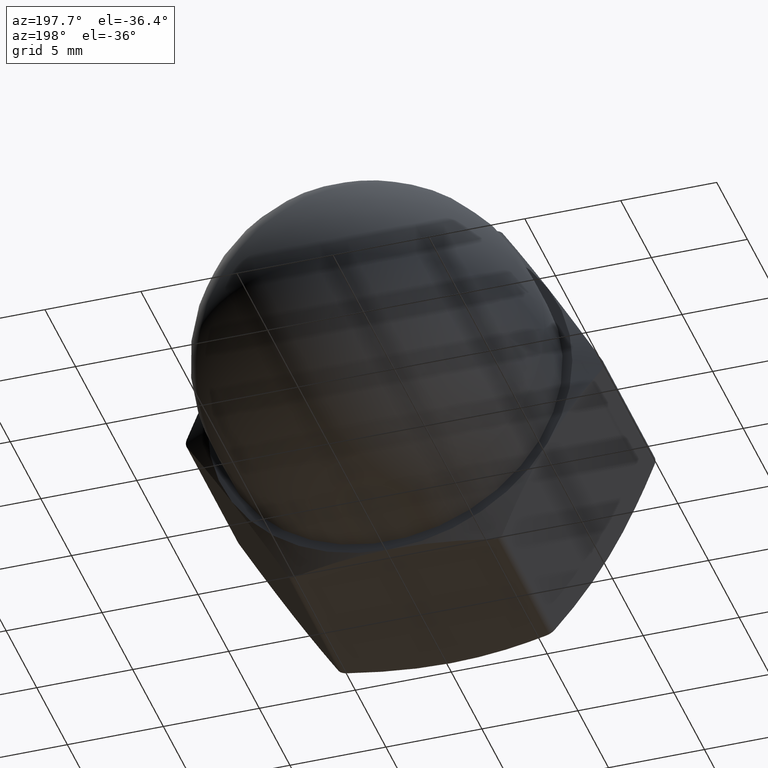
[diagram: clean part render]
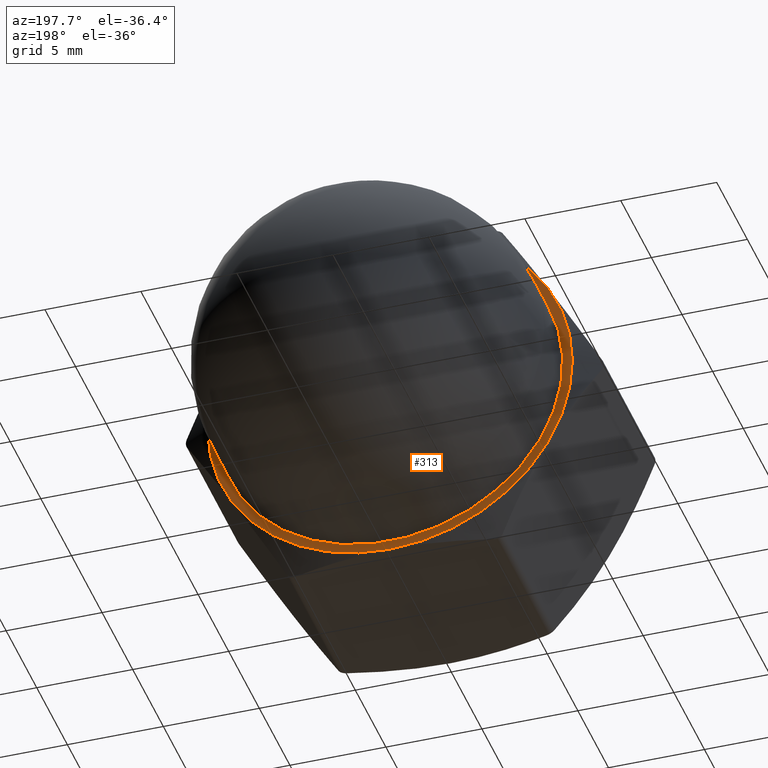
[diagram: same view with one face highlighted and labeled with its STEP entity id]
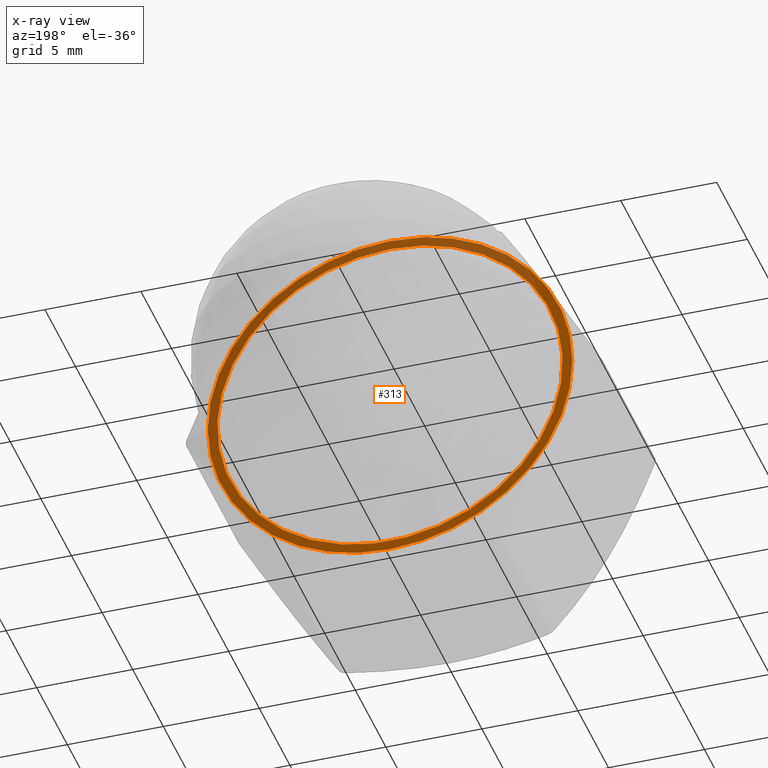
[diagram: x-ray of the same camera — body ghosted, the highlighted face saturated]
A machine part, auxiliary view. The second image highlights one B-rep face of the part: STEP entity #313.
The next image is the same camera in x-ray: the body ghosted, the highlighted face saturated — about 42% of this face is hidden behind the body in this view.
In plain terms, the highlighted planar face has unit normal (0, 1, 0).
Its self-contained STEP definition (entity closure, byte-faithful):
#43 = VERTEX_POINT ( 'NONE', #1134 ) ;
#50 = DIRECTION ( 'NONE',  ( 0.0000000000000000000, 0.0000000000000000000, 1.000000000000000000 ) ) ;
#66 = CARTESIAN_POINT ( 'NONE',  ( 0.0000000000000000000, 10.00000000000000000, 0.0000000000000000000 ) ) ;
#76 = CARTESIAN_POINT ( 'NONE',  ( -8.227241335952168600, 10.00000000000000000, 4.749999999999998200 ) ) ;
#83 = DIRECTION ( 'NONE',  ( 0.0000000000000000000, 1.000000000000000000, 0.0000000000000000000 ) ) ;
#90 = CARTESIAN_POINT ( 'NONE',  ( 0.0000000000000000000, 10.00000000000000000, 0.0000000000000000000 ) ) ;
#123 = AXIS2_PLACEMENT_3D ( 'NONE', #1012, #700, #50 ) ;
#140 = CIRCLE ( 'NONE', #1296, 9.499999999999998200 ) ;
#157 = CIRCLE ( 'NONE', #996, 9.000000000000000000 ) ;
#187 = FACE_BOUND ( 'NONE', #868, .T. ) ;
#191 = EDGE_CURVE ( 'NONE', #1039, #1025, #881, .T. ) ;
#209 = ORIENTED_EDGE ( 'NONE', *, *, #1259, .T. ) ;
#231 = DIRECTION ( 'NONE',  ( 0.0000000000000000000, 1.000000000000000000, 0.0000000000000000000 ) ) ;
#313 = ADVANCED_FACE ( 'NONE', ( #187, #1357 ), #1345, .T. ) ;
#336 = VERTEX_POINT ( 'NONE', #822 ) ;
#372 = ORIENTED_EDGE ( 'NONE', *, *, #752, .F. ) ;
#383 = ORIENTED_EDGE ( 'NONE', *, *, #496, .F. ) ;
#419 = VERTEX_POINT ( 'NONE', #731 ) ;
#440 = DIRECTION ( 'NONE',  ( 0.0000000000000000000, 1.000000000000000000, 0.0000000000000000000 ) ) ;
#462 = EDGE_CURVE ( 'NONE', #336, #1039, #140, .T. ) ;
#496 = EDGE_CURVE ( 'NONE', #1085, #1085, #157, .T. ) ;
#498 = CARTESIAN_POINT ( 'NONE',  ( 0.0000000000000000000, 10.00000000000000000, 9.500000000000000000 ) ) ;
#550 = ORIENTED_EDGE ( 'NONE', *, *, #1101, .T. ) ;
#576 = CARTESIAN_POINT ( 'NONE',  ( 1.224646799147353100E-015, 10.00000000000000000, 9.000000000000000000 ) ) ;
#646 = AXIS2_PLACEMENT_3D ( 'NONE', #66, #808, #902 ) ;
#652 = CIRCLE ( 'NONE', #1045, 9.500000000000000000 ) ;
#671 = CARTESIAN_POINT ( 'NONE',  ( 0.0000000000000000000, 10.00000000000000000, 0.0000000000000000000 ) ) ;
#673 = DIRECTION ( 'NONE',  ( 0.0000000000000000000, 0.0000000000000000000, 1.000000000000000000 ) ) ;
#700 = DIRECTION ( 'NONE',  ( 0.0000000000000000000, 1.000000000000000000, 0.0000000000000000000 ) ) ;
#725 = VERTEX_POINT ( 'NONE', #785 ) ;
#731 = CARTESIAN_POINT ( 'NONE',  ( 8.227241335952166800, 10.00000000000000000, 4.749999999999999100 ) ) ;
#752 = EDGE_CURVE ( 'NONE', #43, #725, #652, .T. ) ;
#782 = CIRCLE ( 'NONE', #950, 9.499999999999998200 ) ;
#785 = CARTESIAN_POINT ( 'NONE',  ( 8.227241335952166800, 10.00000000000000000, -4.750000000000000900 ) ) ;
#792 = EDGE_CURVE ( 'NONE', #43, #336, #1104, .T. ) ;
#808 = DIRECTION ( 'NONE',  ( 0.0000000000000000000, 1.000000000000000000, 0.0000000000000000000 ) ) ;
#822 = CARTESIAN_POINT ( 'NONE',  ( -8.227241335952166800, 10.00000000000000000, -4.749999999999999100 ) ) ;
#825 = DIRECTION ( 'NONE',  ( 0.0000000000000000000, 0.0000000000000000000, 1.000000000000000000 ) ) ;
#853 = ORIENTED_EDGE ( 'NONE', *, *, #462, .T. ) ;
#862 = DIRECTION ( 'NONE',  ( 0.0000000000000000000, 0.0000000000000000000, 1.000000000000000000 ) ) ;
#868 = EDGE_LOOP ( 'NONE', ( #383 ) ) ;
#877 = DIRECTION ( 'NONE',  ( 0.0000000000000000000, 0.0000000000000000000, 1.000000000000000000 ) ) ;
#878 = CIRCLE ( 'NONE', #1167, 9.499999999999998200 ) ;
#879 = DIRECTION ( 'NONE',  ( 0.0000000000000000000, 1.000000000000000000, 0.0000000000000000000 ) ) ;
#881 = CIRCLE ( 'NONE', #123, 9.499999999999998200 ) ;
#884 = CARTESIAN_POINT ( 'NONE',  ( 0.0000000000000000000, 10.00000000000000000, 0.0000000000000000000 ) ) ;
#902 = DIRECTION ( 'NONE',  ( 0.0000000000000000000, -0.0000000000000000000, 1.000000000000000000 ) ) ;
#950 = AXIS2_PLACEMENT_3D ( 'NONE', #90, #83, #825 ) ;
#981 = ORIENTED_EDGE ( 'NONE', *, *, #792, .T. ) ;
#987 = DIRECTION ( 'NONE',  ( 0.0000000000000000000, 0.0000000000000000000, -1.000000000000000000 ) ) ;
#996 = AXIS2_PLACEMENT_3D ( 'NONE', #1193, #231, #862 ) ;
#1012 = CARTESIAN_POINT ( 'NONE',  ( 0.0000000000000000000, 10.00000000000000000, 0.0000000000000000000 ) ) ;
#1025 = VERTEX_POINT ( 'NONE', #498 ) ;
#1039 = VERTEX_POINT ( 'NONE', #76 ) ;
#1045 = AXIS2_PLACEMENT_3D ( 'NONE', #884, #1118, #987 ) ;
#1054 = DIRECTION ( 'NONE',  ( 0.0000000000000000000, 0.0000000000000000000, 1.000000000000000000 ) ) ;
#1085 = VERTEX_POINT ( 'NONE', #576 ) ;
#1101 = EDGE_CURVE ( 'NONE', #419, #725, #782, .T. ) ;
#1104 = CIRCLE ( 'NONE', #1337, 9.499999999999998200 ) ;
#1118 = DIRECTION ( 'NONE',  ( -0.0000000000000000000, -1.000000000000000000, -0.0000000000000000000 ) ) ;
#1124 = ORIENTED_EDGE ( 'NONE', *, *, #191, .T. ) ;
#1134 = CARTESIAN_POINT ( 'NONE',  ( -3.004629197474318900E-015, 10.00000000000000000, -9.500000000000000000 ) ) ;
#1157 = EDGE_LOOP ( 'NONE', ( #1124, #209, #550, #372, #981, #853 ) ) ;
#1160 = CARTESIAN_POINT ( 'NONE',  ( 0.0000000000000000000, 10.00000000000000000, 0.0000000000000000000 ) ) ;
#1167 = AXIS2_PLACEMENT_3D ( 'NONE', #671, #440, #877 ) ;
#1193 = CARTESIAN_POINT ( 'NONE',  ( 1.224646799147353100E-015, 10.00000000000000000, 0.0000000000000000000 ) ) ;
#1259 = EDGE_CURVE ( 'NONE', #1025, #419, #878, .T. ) ;
#1272 = DIRECTION ( 'NONE',  ( 0.0000000000000000000, 1.000000000000000000, 0.0000000000000000000 ) ) ;
#1296 = AXIS2_PLACEMENT_3D ( 'NONE', #1160, #1272, #1054 ) ;
#1322 = CARTESIAN_POINT ( 'NONE',  ( 0.0000000000000000000, 10.00000000000000000, 0.0000000000000000000 ) ) ;
#1337 = AXIS2_PLACEMENT_3D ( 'NONE', #1322, #879, #673 ) ;
#1345 = PLANE ( 'NONE',  #646 ) ;
#1357 = FACE_OUTER_BOUND ( 'NONE', #1157, .T. ) ;